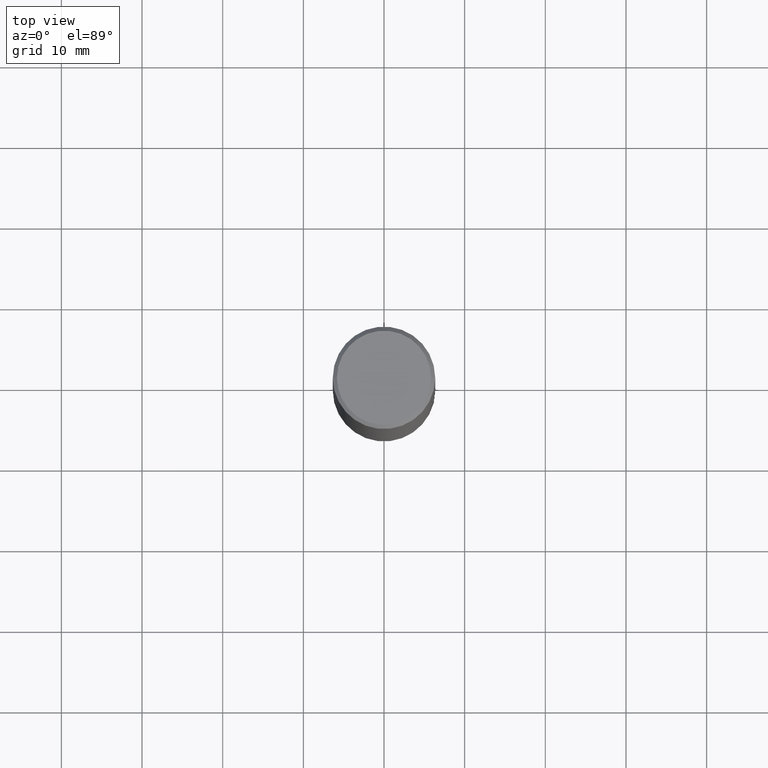
[diagram: clean part render]
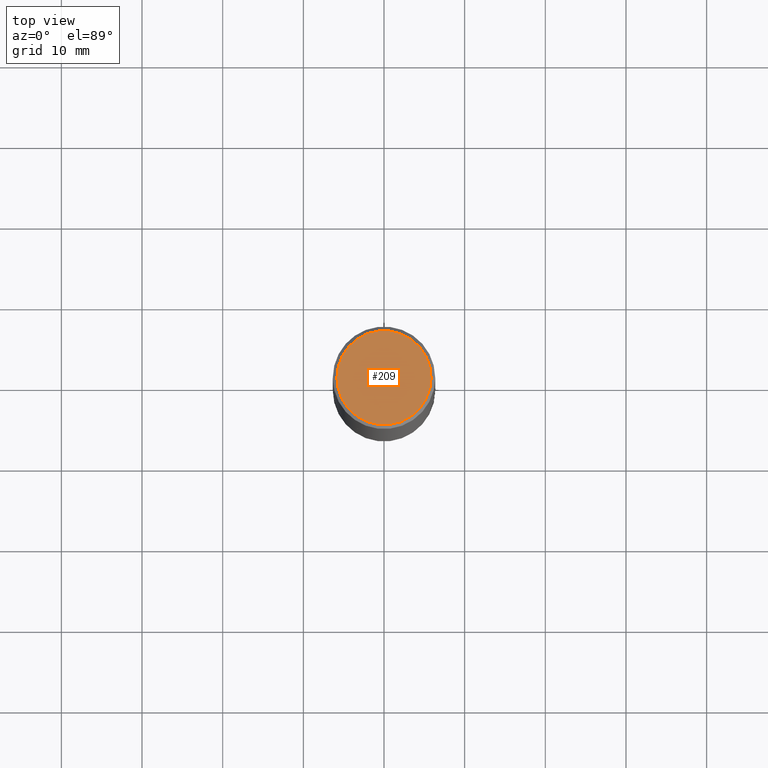
[diagram: same view with one face highlighted and labeled with its STEP entity id]
A machine part, top view. The second image highlights one B-rep face of the part: STEP entity #209.
In plain terms, the highlighted planar face has unit normal (0, -0, -1).
Its self-contained STEP definition (entity closure, byte-faithful):
#8 = PLANE ( 'NONE',  #49 ) ;
#14 = VERTEX_POINT ( 'NONE', #145 ) ;
#32 = DIRECTION ( 'NONE',  ( 1.000000000000000000, -6.982962677686267499E-15, 4.876225828469313926E-29 ) ) ;
#35 = FACE_OUTER_BOUND ( 'NONE', #217, .T. ) ;
#49 = AXIS2_PLACEMENT_3D ( 'NONE', #204, #288, #150 ) ;
#63 = VERTEX_POINT ( 'NONE', #306 ) ;
#84 = CARTESIAN_POINT ( 'NONE',  ( -1.043851414335219820E-46, 1.490343170380447200E-32, 4.268512490100411279E-18 ) ) ;
#94 = ORIENTED_EDGE ( 'NONE', *, *, #219, .T. ) ;
#121 = CIRCLE ( 'NONE', #215, 0.2299999999999997602 ) ;
#130 = EDGE_CURVE ( 'NONE', #63, #14, #121, .T. ) ;
#145 = CARTESIAN_POINT ( 'NONE',  ( -0.2299999999999997602, 1.640996229256270941E-15, 4.268512490089056766E-18 ) ) ;
#150 = DIRECTION ( 'NONE',  ( -1.000000000000000000, 6.982962677686265922E-15, -4.876176775795935793E-29 ) ) ;
#175 = DIRECTION ( 'NONE',  ( -2.445468806185136597E-29, 3.491481338843145583E-15, 1.000000000000000000 ) ) ;
#204 = CARTESIAN_POINT ( 'NONE',  ( 1.606081415867839490E-15, 0.2299999999999997602, -8.009064516888724897E-16 ) ) ;
#209 = ADVANCED_FACE ( 'NONE', ( #35 ), #8, .F. ) ;
#215 = AXIS2_PLACEMENT_3D ( 'NONE', #84, #175, #249 ) ;
#217 = EDGE_LOOP ( 'NONE', ( #94, #342 ) ) ;
#219 = EDGE_CURVE ( 'NONE', #14, #63, #266, .T. ) ;
#230 = AXIS2_PLACEMENT_3D ( 'NONE', #232, #283, #32 ) ;
#232 = CARTESIAN_POINT ( 'NONE',  ( -1.043851414335219820E-46, 1.490343170380447200E-32, 4.268512490100411279E-18 ) ) ;
#249 = DIRECTION ( 'NONE',  ( 1.000000000000000000, -6.982962677686267499E-15, 4.876225828469313926E-29 ) ) ;
#266 = CIRCLE ( 'NONE', #230, 0.2299999999999997602 ) ;
#283 = DIRECTION ( 'NONE',  ( -2.445468806185136597E-29, 3.491481338843145583E-15, 1.000000000000000000 ) ) ;
#288 = DIRECTION ( 'NONE',  ( 2.438088387897960049E-29, -3.491481338843145188E-15, -1.000000000000000000 ) ) ;
#306 = CARTESIAN_POINT ( 'NONE',  ( 0.2299999999999997602, -1.681434332853597631E-15, 4.268512490111905999E-18 ) ) ;
#342 = ORIENTED_EDGE ( 'NONE', *, *, #130, .T. ) ;